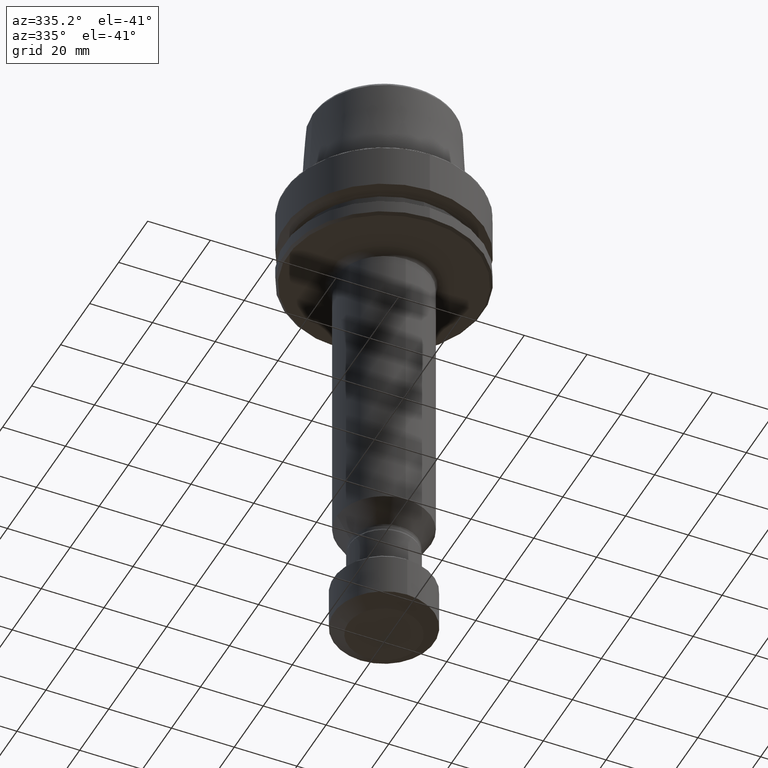
[diagram: clean part render]
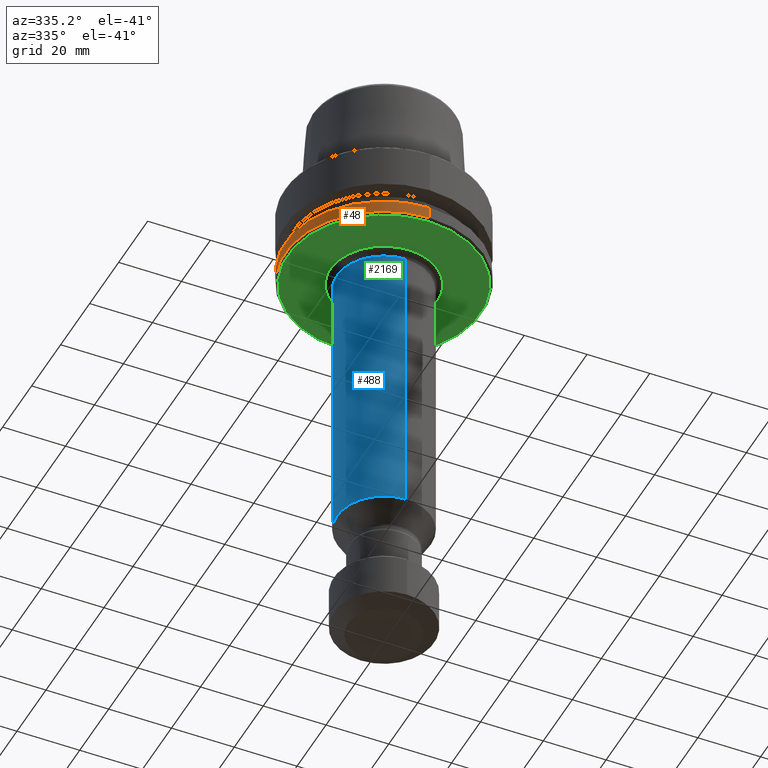
[diagram: same view with three faces highlighted in distinct colors, each labeled with its STEP entity id]
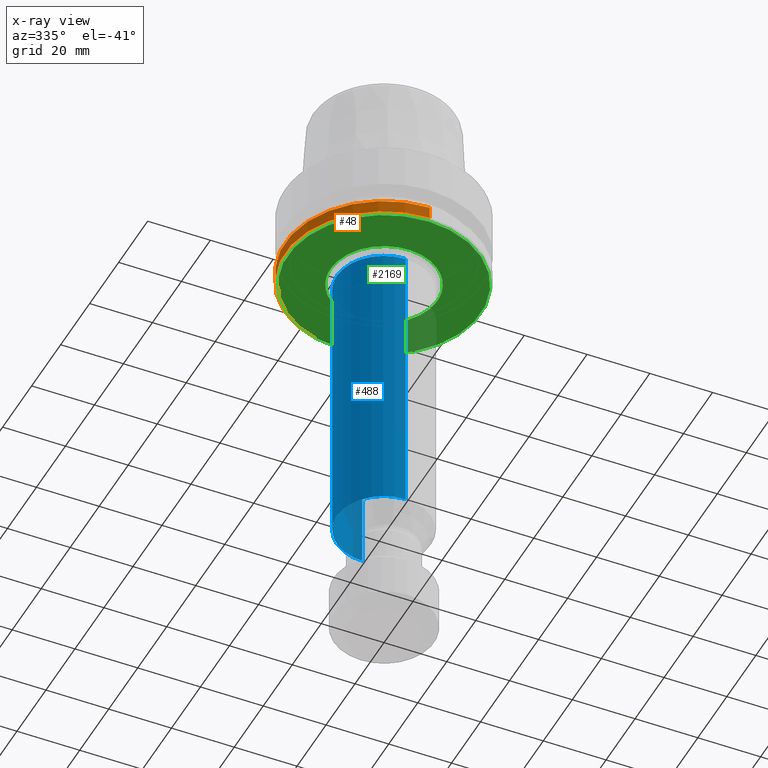
[diagram: x-ray of the same camera — body ghosted, the three highlighted faces saturated]
A machine part, auxiliary view with three faces highlighted in distinct colors.
The next image is the same camera in x-ray (body ghosted, the three faces saturated) — at least one of them is partly hidden behind the body in this view.
Their STEP definitions:

[orange] entity #48 — the highlighted cylindrical surface (partial cylindrical patch) has radius 31.5171 mm, axis along (-0, 0, -1).
#33 = CARTESIAN_POINT ( 'NONE',  ( 3.859731114586819800E-015, -31.51709633191913800, -26.00000000375680600 ) ) ;
#48 = ADVANCED_FACE ( 'NONE', ( #560 ), #2134, .T. ) ;
#65 = CARTESIAN_POINT ( 'NONE',  ( 0.0000000000000000000, 3.171708505008468500E-009, -21.33888289826489500 ) ) ;
#109 = AXIS2_PLACEMENT_3D ( 'NONE', #923, #687, #2064 ) ;
#133 = ORIENTED_EDGE ( 'NONE', *, *, #1141, .T. ) ;
#164 = VERTEX_POINT ( 'NONE', #244 ) ;
#179 = AXIS2_PLACEMENT_3D ( 'NONE', #65, #1617, #289 ) ;
#208 = VECTOR ( 'NONE', #273, 1000.000000000000000 ) ;
#244 = CARTESIAN_POINT ( 'NONE',  ( 3.859731114572656600E-015, -31.51709633178088100, -25.21952045006070600 ) ) ;
#273 = DIRECTION ( 'NONE',  ( -0.0000000000000000000, 1.191989932012234400E-010, -1.000000000000000000 ) ) ;
#289 = DIRECTION ( 'NONE',  ( 0.0000000000000000000, 1.000000000000000000, 1.191990316988540100E-010 ) ) ;
#328 = DIRECTION ( 'NONE',  ( 0.0000000000000000000, 1.000000000000000000, 1.191990316997287000E-010 ) ) ;
#480 = CARTESIAN_POINT ( 'NONE',  ( 0.0000000000000000000, 31.51709633937375800, -25.99999999624319000 ) ) ;
#516 = CARTESIAN_POINT ( 'NONE',  ( 0.0000000000000000000, 31.51709633904943400, -21.33888289450808900 ) ) ;
#560 = FACE_OUTER_BOUND ( 'NONE', #567, .T. ) ;
#567 = EDGE_LOOP ( 'NONE', ( #2666, #693, #133, #997 ) ) ;
#687 = DIRECTION ( 'NONE',  ( -0.0000000000000000000, 1.191989932012234400E-010, -1.000000000000000000 ) ) ;
#693 = ORIENTED_EDGE ( 'NONE', *, *, #927, .T. ) ;
#923 = CARTESIAN_POINT ( 'NONE',  ( 0.0000000000000000000, 3.634276593713582200E-009, -25.21952044630390000 ) ) ;
#927 = EDGE_CURVE ( 'NONE', #1652, #1264, #1047, .T. ) ;
#997 = ORIENTED_EDGE ( 'NONE', *, *, #1541, .F. ) ;
#1047 = CIRCLE ( 'NONE', #179, 31.51709633587772400 ) ;
#1141 = EDGE_CURVE ( 'NONE', #1264, #2249, #2524, .T. ) ;
#1264 = VERTEX_POINT ( 'NONE', #516 ) ;
#1406 = EDGE_CURVE ( 'NONE', #1652, #164, #1942, .T. ) ;
#1432 = CARTESIAN_POINT ( 'NONE',  ( 0.0000000000000000000, 31.51709633904942700, -25.21952044254709000 ) ) ;
#1504 = VECTOR ( 'NONE', #2164, 1000.000000000000000 ) ;
#1541 = EDGE_CURVE ( 'NONE', #164, #2249, #2690, .T. ) ;
#1565 = CARTESIAN_POINT ( 'NONE',  ( 3.859731114615143900E-015, -31.51709633270602500, -21.33888290202170500 ) ) ;
#1617 = DIRECTION ( 'NONE',  ( -0.0000000000000000000, 1.191989932012234400E-010, -1.000000000000000000 ) ) ;
#1652 = VERTEX_POINT ( 'NONE', #1565 ) ;
#1726 = CARTESIAN_POINT ( 'NONE',  ( 0.0000000000000000000, 3.727308970728297600E-009, -26.00000000000000000 ) ) ;
#1837 = DIRECTION ( 'NONE',  ( -0.0000000000000000000, 1.191989932012234400E-010, -1.000000000000000000 ) ) ;
#1941 = AXIS2_PLACEMENT_3D ( 'NONE', #1726, #1837, #328 ) ;
#1942 = LINE ( 'NONE', #33, #208 ) ;
#2064 = DIRECTION ( 'NONE',  ( 0.0000000000000000000, 1.000000000000000000, 1.191990317006034700E-010 ) ) ;
#2134 = CYLINDRICAL_SURFACE ( 'NONE', #1941, 31.51709633564645000 ) ;
#2164 = DIRECTION ( 'NONE',  ( -0.0000000000000000000, 1.191989932012234400E-010, -1.000000000000000000 ) ) ;
#2249 = VERTEX_POINT ( 'NONE', #1432 ) ;
#2524 = LINE ( 'NONE', #480, #1504 ) ;
#2666 = ORIENTED_EDGE ( 'NONE', *, *, #1406, .F. ) ;
#2690 = CIRCLE ( 'NONE', #109, 31.51709633541515400 ) ;

[blue] entity #488 — the highlighted cylindrical surface (partial cylindrical patch) has radius 15 mm, axis along (0, -0, 1).
#47 = CARTESIAN_POINT ( 'NONE',  ( -15.00000000000004800, 1.836970198721035500E-015, -120.0399999999999200 ) ) ;
#71 = FACE_OUTER_BOUND ( 'NONE', #1310, .T. ) ;
#75 = CARTESIAN_POINT ( 'NONE',  ( 0.0000000000000000000, 0.0000000000000000000, -120.0399999999999200 ) ) ;
#102 = CARTESIAN_POINT ( 'NONE',  ( 0.0000000000000000000, 0.0000000000000000000, -120.0400000000000100 ) ) ;
#159 = AXIS2_PLACEMENT_3D ( 'NONE', #1609, #956, #349 ) ;
#245 = VECTOR ( 'NONE', #866, 1000.000000000000000 ) ;
#298 = DIRECTION ( 'NONE',  ( 1.000000000000000000, 0.0000000000000000000, -5.551115123125782700E-015 ) ) ;
#349 = DIRECTION ( 'NONE',  ( 1.000000000000000000, 0.0000000000000000000, -5.551115123125782700E-015 ) ) ;
#350 = CARTESIAN_POINT ( 'NONE',  ( 0.0000000000000000000, -15.00000000000004300, -27.99999999999999600 ) ) ;
#389 = ORIENTED_EDGE ( 'NONE', *, *, #1256, .T. ) ;
#422 = CARTESIAN_POINT ( 'NONE',  ( -15.00000000000000000, -3.691861713275960800E-009, -27.99999999999999600 ) ) ;
#435 = AXIS2_PLACEMENT_3D ( 'NONE', #75, #1627, #298 ) ;
#488 = ADVANCED_FACE ( 'NONE', ( #71 ), #2208, .T. ) ;
#582 = DIRECTION ( 'NONE',  ( 0.0000000000000000000, -1.000000000000000000, -9.251858538542971800E-016 ) ) ;
#585 = AXIS2_PLACEMENT_3D ( 'NONE', #102, #2658, #582 ) ;
#645 = VERTEX_POINT ( 'NONE', #2436 ) ;
#706 = VECTOR ( 'NONE', #2204, 1000.000000000000000 ) ;
#765 = ORIENTED_EDGE ( 'NONE', *, *, #2238, .F. ) ;
#783 = EDGE_CURVE ( 'NONE', #875, #1807, #854, .T. ) ;
#785 = CARTESIAN_POINT ( 'NONE',  ( 0.0000000000000000000, 0.0000000000000000000, -27.99999999999999600 ) ) ;
#794 = AXIS2_PLACEMENT_3D ( 'NONE', #853, #1680, #2548 ) ;
#841 = CARTESIAN_POINT ( 'NONE',  ( 1.836970198721029600E-015, 15.00000000000000000, -120.0399999999999900 ) ) ;
#853 = CARTESIAN_POINT ( 'NONE',  ( 0.0000000000000000000, 0.0000000000000000000, -27.99999999999999600 ) ) ;
#854 = LINE ( 'NONE', #841, #245 ) ;
#866 = DIRECTION ( 'NONE',  ( 0.0000000000000000000, -4.625929269271486900E-016, 1.000000000000000000 ) ) ;
#872 = DIRECTION ( 'NONE',  ( 0.0000000000000000000, 0.0000000000000000000, 1.000000000000000000 ) ) ;
#875 = VERTEX_POINT ( 'NONE', #1584 ) ;
#876 = ORIENTED_EDGE ( 'NONE', *, *, #783, .F. ) ;
#885 = DIRECTION ( 'NONE',  ( 1.000000000000000000, 0.0000000000000000000, -2.312964634635743000E-016 ) ) ;
#908 = ORIENTED_EDGE ( 'NONE', *, *, #2365, .F. ) ;
#947 = EDGE_CURVE ( 'NONE', #1898, #645, #1540, .T. ) ;
#956 = DIRECTION ( 'NONE',  ( 0.0000000000000000000, 0.0000000000000000000, 1.000000000000000000 ) ) ;
#966 = AXIS2_PLACEMENT_3D ( 'NONE', #785, #872, #885 ) ;
#1196 = CIRCLE ( 'NONE', #966, 15.00000000000000000 ) ;
#1256 = EDGE_CURVE ( 'NONE', #645, #2397, #1324, .T. ) ;
#1310 = EDGE_LOOP ( 'NONE', ( #876, #1730, #1986, #389, #908, #765 ) ) ;
#1324 = LINE ( 'NONE', #2278, #706 ) ;
#1379 = EDGE_CURVE ( 'NONE', #875, #1898, #2011, .T. ) ;
#1540 = CIRCLE ( 'NONE', #435, 15.00000000000000000 ) ;
#1564 = CARTESIAN_POINT ( 'NONE',  ( 1.836970198721029600E-015, 14.99999999999995600, -27.99999999999999600 ) ) ;
#1584 = CARTESIAN_POINT ( 'NONE',  ( 1.836970198721032000E-015, 15.00000000000000000, -120.0399999999999200 ) ) ;
#1609 = CARTESIAN_POINT ( 'NONE',  ( 0.0000000000000000000, 0.0000000000000000000, -120.0399999999999200 ) ) ;
#1627 = DIRECTION ( 'NONE',  ( 0.0000000000000000000, 0.0000000000000000000, 1.000000000000000000 ) ) ;
#1680 = DIRECTION ( 'NONE',  ( 0.0000000000000000000, 0.0000000000000000000, 1.000000000000000000 ) ) ;
#1730 = ORIENTED_EDGE ( 'NONE', *, *, #1379, .T. ) ;
#1800 = CIRCLE ( 'NONE', #794, 15.00000000000000000 ) ;
#1807 = VERTEX_POINT ( 'NONE', #1564 ) ;
#1898 = VERTEX_POINT ( 'NONE', #47 ) ;
#1986 = ORIENTED_EDGE ( 'NONE', *, *, #947, .T. ) ;
#2011 = CIRCLE ( 'NONE', #159, 15.00000000000000000 ) ;
#2175 = VERTEX_POINT ( 'NONE', #422 ) ;
#2204 = DIRECTION ( 'NONE',  ( 0.0000000000000000000, -4.625929269271486900E-016, 1.000000000000000000 ) ) ;
#2208 = CYLINDRICAL_SURFACE ( 'NONE', #585, 15.00000000000000000 ) ;
#2238 = EDGE_CURVE ( 'NONE', #1807, #2175, #1800, .T. ) ;
#2278 = CARTESIAN_POINT ( 'NONE',  ( 0.0000000000000000000, -15.00000000000000000, -120.0400000000000200 ) ) ;
#2365 = EDGE_CURVE ( 'NONE', #2175, #2397, #1196, .T. ) ;
#2397 = VERTEX_POINT ( 'NONE', #350 ) ;
#2436 = CARTESIAN_POINT ( 'NONE',  ( 0.0000000000000000000, -15.00000000000000000, -120.0399999999999200 ) ) ;
#2548 = DIRECTION ( 'NONE',  ( 1.000000000000000000, 0.0000000000000000000, -2.312964634635743000E-016 ) ) ;
#2658 = DIRECTION ( 'NONE',  ( 0.0000000000000000000, -4.625929269271486900E-016, 1.000000000000000000 ) ) ;

[green] entity #2169 — the highlighted planar face has unit normal (0, 0, 1).
#23 = CARTESIAN_POINT ( 'NONE',  ( -9.647156264525051500, 13.99763926153691100, -26.00000000000001100 ) ) ;
#38 = CARTESIAN_POINT ( 'NONE',  ( 5.834791823274754200, -15.96755372588002900, -26.00000000000000000 ) ) ;
#42 = CARTESIAN_POINT ( 'NONE',  ( -11.40718896748278700, 12.60828393399529700, -26.00000000000000400 ) ) ;
#49 = CARTESIAN_POINT ( 'NONE',  ( -16.85576474268924600, -2.209818300170409300, -26.00000000000000000 ) ) ;
#53 = CARTESIAN_POINT ( 'NONE',  ( -16.86035588276091300, -2.174700083002717700, -26.00000000000000000 ) ) ;
#66 = CARTESIAN_POINT ( 'NONE',  ( -9.940187602023494100, 13.79468661339041600, -26.00000000000000700 ) ) ;
#70 = CARTESIAN_POINT ( 'NONE',  ( 10.96779659965198800, -12.98916458341760100, -26.00000000000000400 ) ) ;
#78 = CARTESIAN_POINT ( 'NONE',  ( 13.28972600789002100, -10.60284131155885700, -26.00000000000000700 ) ) ;
#83 = CARTESIAN_POINT ( 'NONE',  ( 15.26609139954376300, -7.479753492256599600, -26.00000000000001400 ) ) ;
#92 = CARTESIAN_POINT ( 'NONE',  ( -10.32283768817465500, 13.51352612423026800, -26.00000000000000000 ) ) ;
#96 = CARTESIAN_POINT ( 'NONE',  ( 16.73638598865893800, -2.995746654456582700, -26.00000000000000700 ) ) ;
#104 = CARTESIAN_POINT ( 'NONE',  ( -10.75516065195249700, 13.16703087652168800, -26.00000000000000700 ) ) ;
#121 = CARTESIAN_POINT ( 'NONE',  ( -10.96779659965844500, 12.98916458341195900, -26.00000000000001100 ) ) ;
#154 = CARTESIAN_POINT ( 'NONE',  ( -11.05817081992179900, 12.91194645723877200, -26.00000000000000400 ) ) ;
#183 = CARTESIAN_POINT ( 'NONE',  ( 3.843225236679011400, -16.56011569873480500, -26.00000000000000400 ) ) ;
#185 = CARTESIAN_POINT ( 'NONE',  ( -11.11825241751721700, 12.86024776982542200, -26.00000000000000700 ) ) ;
#188 = CARTESIAN_POINT ( 'NONE',  ( -11.14944384421238300, 12.83321108289902000, -26.00000000000000400 ) ) ;
#191 = CARTESIAN_POINT ( 'NONE',  ( -8.072421543958272500, -14.96120437804487000, -26.00000000000000000 ) ) ;
#202 = CARTESIAN_POINT ( 'NONE',  ( -12.58346260199631000, -11.43056078559723200, -26.00000000000000700 ) ) ;
#209 = CARTESIAN_POINT ( 'NONE',  ( -15.04449788419776200, -7.934399767635366800, -26.00000000000001100 ) ) ;
#215 = CARTESIAN_POINT ( 'NONE',  ( -16.92634586939122700, -1.600533258015854200, -26.00000000000000400 ) ) ;
#228 = VERTEX_POINT ( 'NONE', #1157 ) ;
#247 = CARTESIAN_POINT ( 'NONE',  ( -16.33489600306393900, -4.708642505619356400, -26.00000000000000400 ) ) ;
#250 = CARTESIAN_POINT ( 'NONE',  ( -11.74241451338749100, 12.29951821889429600, -26.00000000000000700 ) ) ;
#254 = ORIENTED_EDGE ( 'NONE', *, *, #930, .T. ) ;
#255 = CARTESIAN_POINT ( 'NONE',  ( -11.29230975318160200, -12.70767939539272200, -26.00000000000000700 ) ) ;
#267 = CARTESIAN_POINT ( 'NONE',  ( -15.46168851143653800, -7.068391768522939600, -26.00000000000000700 ) ) ;
#286 = CARTESIAN_POINT ( 'NONE',  ( 8.716956867296749700, -14.60150997321109800, -26.00000000000001100 ) ) ;
#293 = CARTESIAN_POINT ( 'NONE',  ( 11.11825241751517300, -12.86024776982721500, -26.00000000000000000 ) ) ;
#295 = CARTESIAN_POINT ( 'NONE',  ( -12.11875040131196200, 11.92378156395837300, -26.00000000000000700 ) ) ;
#303 = CARTESIAN_POINT ( 'NONE',  ( 13.52336041526566000, -10.30150266362391200, -26.00000000000000000 ) ) ;
#309 = CARTESIAN_POINT ( 'NONE',  ( -12.46060636964964800, 11.56436640063805200, -26.00000000000000400 ) ) ;
#312 = CARTESIAN_POINT ( 'NONE',  ( 15.49216912478112600, -7.016095908822215700, -26.00000000000001100 ) ) ;
#315 = CARTESIAN_POINT ( 'NONE',  ( -12.38149936781433000, 11.64902806564135700, -26.00000000000000000 ) ) ;
#318 = CARTESIAN_POINT ( 'NONE',  ( -12.43350442533953000, 11.59350497358883400, -26.00000000000000700 ) ) ;
#321 = CARTESIAN_POINT ( 'NONE',  ( 16.82384480968806500, -2.441974664253411500, -26.00000000000000400 ) ) ;
#322 = AXIS2_PLACEMENT_3D ( 'NONE', #2027, #744, #2203 ) ;
#367 = CARTESIAN_POINT ( 'NONE',  ( -12.68236215214468700, 11.32441305218912400, -26.00000000000001100 ) ) ;
#371 = CARTESIAN_POINT ( 'NONE',  ( -15.17620408239110900, 7.661003371127924800, -26.00000000000000700 ) ) ;
#378 = CARTESIAN_POINT ( 'NONE',  ( -13.44610155534271600, 10.40247710365459400, -26.00000000000001100 ) ) ;
#382 = CARTESIAN_POINT ( 'NONE',  ( -13.28972600791165500, 10.60284131153130400, -26.00000000000001100 ) ) ;
#400 = CARTESIAN_POINT ( 'NONE',  ( 6.706845463135679500, 15.62269563764839700, -26.00000000000001800 ) ) ;
#414 = CARTESIAN_POINT ( 'NONE',  ( -13.52336041527243200, 10.30150266361530100, -26.00000000000000000 ) ) ;
#416 = CARTESIAN_POINT ( 'NONE',  ( -8.252651186404257500, -14.86289130710688000, -26.00000000000000700 ) ) ;
#420 = CARTESIAN_POINT ( 'NONE',  ( -13.55627230228821400, 10.25805811729110900, -26.00000000000000400 ) ) ;
#428 = CARTESIAN_POINT ( 'NONE',  ( -16.37154339561440300, -4.580126690241742800, -26.00000000000001100 ) ) ;
#432 = CARTESIAN_POINT ( 'NONE',  ( -9.612090290506479600, 14.02174557289354300, -26.00000000000001100 ) ) ;
#436 = CARTESIAN_POINT ( 'NONE',  ( -15.29409227492536200, -7.422327391320598300, -26.00000000000000000 ) ) ;
#442 = CARTESIAN_POINT ( 'NONE',  ( -13.57816932630893300, 10.22905735611779200, -26.00000000000000700 ) ) ;
#453 = CARTESIAN_POINT ( 'NONE',  ( -13.58988373676121400, 10.21348749009063400, -26.00000000000000400 ) ) ;
#464 = CARTESIAN_POINT ( 'NONE',  ( -14.37662306357473900, 9.100880302218154600, -26.00000000000000700 ) ) ;
#467 = CARTESIAN_POINT ( 'NONE',  ( 0.3539836910112552100, -17.00001145159534800, -26.00000000000000400 ) ) ;
#469 = CARTESIAN_POINT ( 'NONE',  ( -13.92372040202458000, 9.768400300886966600, -26.00000000000000000 ) ) ;
#486 = CARTESIAN_POINT ( 'NONE',  ( -7.701651649558276500, -15.15913078814429000, -26.00000000000000700 ) ) ;
#494 = CARTESIAN_POINT ( 'NONE',  ( -15.37233848124005000, -7.259313674650067900, -26.00000000000000700 ) ) ;
#502 = CARTESIAN_POINT ( 'NONE',  ( -9.713453418957646700, -13.95171910311291400, -26.00000000000000700 ) ) ;
#510 = ORIENTED_EDGE ( 'NONE', *, *, #607, .T. ) ;
#513 = CARTESIAN_POINT ( 'NONE',  ( -14.84782310272869100, 8.286896181649396500, -26.00000000000000700 ) ) ;
#519 = CARTESIAN_POINT ( 'NONE',  ( 11.40718896746695600, -12.60828393400910800, -25.99999999999999600 ) ) ;
#530 = CARTESIAN_POINT ( 'NONE',  ( 13.57816932630689700, -10.22905735612038700, -25.99999999999999600 ) ) ;
#536 = CARTESIAN_POINT ( 'NONE',  ( 16.06691766936462400, -5.563972322452262800, -26.00000000000000700 ) ) ;
#547 = CARTESIAN_POINT ( 'NONE',  ( 16.84237997207998200, -2.309627413207572900, -26.00000000000000000 ) ) ;
#562 = CARTESIAN_POINT ( 'NONE',  ( -15.22884932485959700, 7.555404176033091400, -26.00000000000000400 ) ) ;
#572 = CARTESIAN_POINT ( 'NONE',  ( -15.25122009931264700, 7.510029484869273900, -26.00000000000000400 ) ) ;
#587 = CARTESIAN_POINT ( 'NONE',  ( -15.27429668038375800, 7.462980148546568800, -26.00000000000001100 ) ) ;
#591 = CARTESIAN_POINT ( 'NONE',  ( 0.0000000000000000000, 3.727308971165062200E-009, -26.00000000366415900 ) ) ;
#606 = CARTESIAN_POINT ( 'NONE',  ( -15.49216912477989200, 7.016095908826447800, -26.00000000000000700 ) ) ;
#607 = EDGE_CURVE ( 'NONE', #656, #2230, #1220, .T. ) ;
#616 = CARTESIAN_POINT ( 'NONE',  ( -15.26609139954375700, 7.479753492256499200, -26.00000000000000700 ) ) ;
#626 = CARTESIAN_POINT ( 'NONE',  ( 4.519852897653138700, -16.39179475803933200, -26.00000000000000400 ) ) ;
#644 = CARTESIAN_POINT ( 'NONE',  ( -9.409810366562720000, -14.16204788078237100, -26.00000000000001100 ) ) ;
#656 = VERTEX_POINT ( 'NONE', #1682 ) ;
#666 = CARTESIAN_POINT ( 'NONE',  ( -15.63411984570430300, -6.684155819602242600, -26.00000000000000000 ) ) ;
#678 = CARTESIAN_POINT ( 'NONE',  ( -16.42136281507075800, -4.399898238896944300, -26.00000000000000700 ) ) ;
#697 = CARTESIAN_POINT ( 'NONE',  ( 1.412797614006375400, -16.94213636882154400, -26.00000000000000000 ) ) ;
#701 = CARTESIAN_POINT ( 'NONE',  ( -15.78050945205662700, 6.354909413765298600, -26.00000000000000700 ) ) ;
#705 = CARTESIAN_POINT ( 'NONE',  ( -12.82553248566622800, -11.15987411350598500, -26.00000000000000000 ) ) ;
#714 = CARTESIAN_POINT ( 'NONE',  ( -16.99999999918119200, -0.3776924275553627500, -26.00000000000000700 ) ) ;
#720 = CARTESIAN_POINT ( 'NONE',  ( 7.963786252837478800, -15.01931258121101600, -26.00000000000000700 ) ) ;
#731 = CARTESIAN_POINT ( 'NONE',  ( -8.997417252164822800, -14.43038094489272000, -26.00000000000000400 ) ) ;
#737 = CARTESIAN_POINT ( 'NONE',  ( -16.19762457022040200, 5.163615565036729500, -26.00000000000001400 ) ) ;
#740 = CARTESIAN_POINT ( 'NONE',  ( 9.442227348032430400, -14.13704851326248700, -26.00000000000000400 ) ) ;
#742 = CARTESIAN_POINT ( 'NONE',  ( -12.96954360276308000, 10.99723103847711600, -25.99999999999999600 ) ) ;
#744 = DIRECTION ( 'NONE',  ( -0.0000000000000000000, 1.191989932012234400E-010, -1.000000000000000000 ) ) ;
#749 = CARTESIAN_POINT ( 'NONE',  ( 12.11875040129119300, -11.92378156397649200, -26.00000000000000000 ) ) ;
#751 = CARTESIAN_POINT ( 'NONE',  ( -16.06691766936300100, 5.563972322457834400, -26.00000000000000700 ) ) ;
#757 = VERTEX_POINT ( 'NONE', #1712 ) ;
#760 = CARTESIAN_POINT ( 'NONE',  ( 13.92372040202472400, -9.768400300888579600, -26.00000000000000400 ) ) ;
#768 = CARTESIAN_POINT ( 'NONE',  ( 16.25985371870066100, -4.962215133382608600, -26.00000000000000700 ) ) ;
#782 = CARTESIAN_POINT ( 'NONE',  ( 16.84799041216786400, -2.268335583504914200, -26.00000000000000400 ) ) ;
#810 = CARTESIAN_POINT ( 'NONE',  ( -16.25985371870015700, 4.962215133384347600, -26.00000000000000400 ) ) ;
#815 = AXIS2_PLACEMENT_3D ( 'NONE', #591, #2091, #826 ) ;
#819 = CARTESIAN_POINT ( 'NONE',  ( 16.99999999918119900, 0.3776924275719731900, -26.00000000000000000 ) ) ;
#826 = DIRECTION ( 'NONE',  ( 0.0000000000000000000, 1.000000000000000000, 1.191989462966579200E-010 ) ) ;
#836 = CARTESIAN_POINT ( 'NONE',  ( -16.30301991502808400, 4.817855767602949000, -25.99999999999999300 ) ) ;
#842 = CARTESIAN_POINT ( 'NONE',  ( 16.99999999938484100, 3.727308970728297600E-009, -26.00000000000000000 ) ) ;
#851 = CARTESIAN_POINT ( 'NONE',  ( -16.29018721745279300, 4.861209404322699400, -26.00000000000000700 ) ) ;
#856 = CARTESIAN_POINT ( 'NONE',  ( -16.31625896462853500, 4.772824967047387900, -26.00000000000000400 ) ) ;
#863 = CARTESIAN_POINT ( 'NONE',  ( 16.98119468944758000, 0.9430413942550678300, -26.00000000000000400 ) ) ;
#867 = CARTESIAN_POINT ( 'NONE',  ( 16.92634586939123100, 1.600533258037655200, -26.00000000000001100 ) ) ;
#871 = CARTESIAN_POINT ( 'NONE',  ( -5.347591686379922200, -16.14352872737217500, -26.00000000000000400 ) ) ;
#879 = CARTESIAN_POINT ( 'NONE',  ( 16.89069413635457600, 1.928758707258705800, -25.99999999999999600 ) ) ;
#884 = CARTESIAN_POINT ( 'NONE',  ( -9.809656579700993400, -13.88424100516168400, -26.00000000000000400 ) ) ;
#888 = CARTESIAN_POINT ( 'NONE',  ( 16.87081143908416800, 2.092741311201646000, -26.00000000000000700 ) ) ;
#893 = CARTESIAN_POINT ( 'NONE',  ( -16.31153785267413900, 4.788938794873819100, -26.00000000000001100 ) ) ;
#897 = CARTESIAN_POINT ( 'NONE',  ( -13.61089059393459500, -10.18547828135432600, -26.00000000000000400 ) ) ;
#903 = CARTESIAN_POINT ( 'NONE',  ( 16.86035588276091700, 2.174700083006250400, -26.00000000000000000 ) ) ;
#918 = CARTESIAN_POINT ( 'NONE',  ( -16.43971310594719500, 4.349601046917640300, -26.00000000000000000 ) ) ;
#925 = CARTESIAN_POINT ( 'NONE',  ( -2.465069421420353900, -16.82124625225683400, -26.00000000000000400 ) ) ;
#929 = CARTESIAN_POINT ( 'NONE',  ( 16.85576474268923900, 2.209818300172448100, -26.00000000000000000 ) ) ;
#930 = EDGE_CURVE ( 'NONE', #757, #228, #2071, .T. ) ;
#933 = CARTESIAN_POINT ( 'NONE',  ( 16.85267949656107000, 2.233228895894351100, -26.00000000000000700 ) ) ;
#936 = CARTESIAN_POINT ( 'NONE',  ( 1.942477690900757300, -16.88956572208821400, -26.00000000000000700 ) ) ;
#938 = CARTESIAN_POINT ( 'NONE',  ( -5.590991011447757200, 16.05595171354687500, -26.00000000000000700 ) ) ;
#942 = CARTESIAN_POINT ( 'NONE',  ( 16.85133050372439100, 2.243395881769888200, -26.00000000000000000 ) ) ;
#945 = CARTESIAN_POINT ( 'NONE',  ( -11.96070595910099000, -12.08734611341330400, -26.00000000000000000 ) ) ;
#950 = CARTESIAN_POINT ( 'NONE',  ( 16.79282208412595900, 2.680358328449334000, -26.00000000000000400 ) ) ;
#970 = CARTESIAN_POINT ( 'NONE',  ( -15.28828640665194200, -7.434283152958784900, -26.00000000000000000 ) ) ;
#972 = CARTESIAN_POINT ( 'NONE',  ( 16.68407581597388800, 3.311069552728886900, -25.99999999999999600 ) ) ;
#980 = CARTESIAN_POINT ( 'NONE',  ( -2.811825642785116500, -16.76678586512079500, -26.00000000000000000 ) ) ;
#981 = CARTESIAN_POINT ( 'NONE',  ( -16.59569262625943200, 3.728881478310603000, -26.00000000000001100 ) ) ;
#985 = CARTESIAN_POINT ( 'NONE',  ( -16.73638598866200100, 2.995746654446077800, -26.00000000000000700 ) ) ;
#987 = CARTESIAN_POINT ( 'NONE',  ( 9.612090290504866600, -14.02174557289427700, -26.00000000000000000 ) ) ;
#991 = CARTESIAN_POINT ( 'NONE',  ( 16.51582972314454500, 4.038375910784454300, -26.00000000000000000 ) ) ;
#995 = CARTESIAN_POINT ( 'NONE',  ( -16.79641198370620000, 2.626938744058072500, -26.00000000000000700 ) ) ;
#999 = CARTESIAN_POINT ( 'NONE',  ( 12.38149936780704300, -11.64902806564772500, -26.00000000000000400 ) ) ;
#1009 = CARTESIAN_POINT ( 'NONE',  ( 14.84782310272889200, -8.286896181651494300, -26.00000000000000000 ) ) ;
#1020 = CARTESIAN_POINT ( 'NONE',  ( 16.30301991502824100, -4.817855767602432900, -26.00000000000000400 ) ) ;
#1021 = CARTESIAN_POINT ( 'NONE',  ( 16.42136281506691700, 4.399898238911236900, -26.00000000000000700 ) ) ;
#1025 = CARTESIAN_POINT ( 'NONE',  ( -16.82384480968902800, 2.441974664250130500, -26.00000000000000700 ) ) ;
#1029 = CARTESIAN_POINT ( 'NONE',  ( 16.99999999918119200, -0.7557261884796181400, -26.00000000000000000 ) ) ;
#1036 = CARTESIAN_POINT ( 'NONE',  ( 16.37154339561233500, 4.580126690249398900, -26.00000000000000400 ) ) ;
#1045 = CARTESIAN_POINT ( 'NONE',  ( 6.940226566734155600, -15.52527591236604800, -26.00000000000001100 ) ) ;
#1057 = CARTESIAN_POINT ( 'NONE',  ( -16.83691617979560800, 2.349352593192678200, -26.00000000000000400 ) ) ;
#1059 = CARTESIAN_POINT ( 'NONE',  ( -17.00000000079964500, 3.727308392487138600E-009, -26.00000000000000700 ) ) ;
#1063 = EDGE_CURVE ( 'NONE', #228, #757, #1210, .T. ) ;
#1071 = CARTESIAN_POINT ( 'NONE',  ( -16.84799041216786000, 2.268335583505176600, -26.00000000000000000 ) ) ;
#1085 = CARTESIAN_POINT ( 'NONE',  ( 16.34598719453112300, 4.670107737737172500, -26.00000000000000400 ) ) ;
#1088 = CARTESIAN_POINT ( 'NONE',  ( -16.84599178394218200, 2.283137291732381800, -26.00000000000000400 ) ) ;
#1092 = CARTESIAN_POINT ( 'NONE',  ( -16.99999999918118500, 0.7557261884630278600, -25.99999999999999600 ) ) ;
#1095 = CARTESIAN_POINT ( 'NONE',  ( 6.473660463889022900, -15.72279917331314000, -26.00000000000000000 ) ) ;
#1099 = CARTESIAN_POINT ( 'NONE',  ( -16.94985250655823000, 1.507938577807351500, -26.00000000000000400 ) ) ;
#1105 = CARTESIAN_POINT ( 'NONE',  ( -6.239085491697580600, -15.81395577495981900, -26.00000000000000700 ) ) ;
#1115 = CARTESIAN_POINT ( 'NONE',  ( -10.57303944956091100, -13.31867976884930500, -26.00000000000000000 ) ) ;
#1125 = CARTESIAN_POINT ( 'NONE',  ( -16.68407581598267700, -3.311069552696198800, -26.00000000000000400 ) ) ;
#1145 = CARTESIAN_POINT ( 'NONE',  ( 16.33489600306332100, 4.708642505621647000, -26.00000000000000400 ) ) ;
#1151 = CARTESIAN_POINT ( 'NONE',  ( 16.32747109011555900, 4.734326009059806500, -25.99999999999999600 ) ) ;
#1154 = CARTESIAN_POINT ( 'NONE',  ( -3.330378292184442000, -16.67709292436704500, -26.00000000000001400 ) ) ;
#1157 = CARTESIAN_POINT ( 'NONE',  ( 3.812139285837914400E-015, 30.73986279305038800, -26.00000000000000000 ) ) ;
#1163 = CARTESIAN_POINT ( 'NONE',  ( 2.465239170421802900, -16.82398139385317400, -26.00000000000000400 ) ) ;
#1173 = CARTESIAN_POINT ( 'NONE',  ( -12.51104193519603000, -11.50978870937436800, -26.00000000000000700 ) ) ;
#1177 = CARTESIAN_POINT ( 'NONE',  ( 16.32421794116105200, 4.745536864055036800, -26.00000000000000400 ) ) ;
#1178 = EDGE_CURVE ( 'NONE', #2230, #656, #2342, .T. ) ;
#1185 = CARTESIAN_POINT ( 'NONE',  ( -13.87862627674489200, -9.819191956746934100, -26.00000000000000400 ) ) ;
#1188 = CARTESIAN_POINT ( 'NONE',  ( 16.18502585690640700, 5.222820342672882500, -26.00000000000000700 ) ) ;
#1194 = CARTESIAN_POINT ( 'NONE',  ( -16.32421794116093800, -4.745536864055377900, -26.00000000000000700 ) ) ;
#1195 = CARTESIAN_POINT ( 'NONE',  ( 15.95390760973257300, 5.906115375114203500, -26.00000000000000400 ) ) ;
#1199 = CARTESIAN_POINT ( 'NONE',  ( 15.63411984569950900, 6.684155819616573300, -26.00000000000001100 ) ) ;
#1202 = CARTESIAN_POINT ( 'NONE',  ( 15.46168851143372800, 7.068391768531292000, -26.00000000000000400 ) ) ;
#1207 = CARTESIAN_POINT ( 'NONE',  ( 9.940187602015065200, -13.79468661339777000, -26.00000000000000700 ) ) ;
#1210 = CIRCLE ( 'NONE', #815, 30.73986278932308000 ) ;
#1217 = CARTESIAN_POINT ( 'NONE',  ( 12.46060636965171400, -11.56436640063542900, -26.00000000000000400 ) ) ;
#1220 = B_SPLINE_CURVE_WITH_KNOTS ( 'NONE', 3,
 ( #2313, #714, #2375, #215, #1538, #1563, #53, #49, #2348, #1429, #2016, #1125, #1808, #678, #428, #1600, #247, #1422, #1194, #2323, #2144, #666, #267, #494, #1951, #2186, #436, #970, #209, #2679, #1356, #1185, #2362, #2549, #2501, #1409, #897, #2137, #1939, #705, #1727, #202, #2670, #1173, #2542, #945, #1345, #2355, #255, #2493, #1588, #2179, #1115, #1997, #2305, #884, #2129, #502, #644, #731, #1932, #416, #1722, #191, #1531, #486, #1788, #2662, #1337, #2484, #1105, #2298, #871, #1612, #2119, #2562, #2557, #1384, #1154, #980, #925, #2191, #1569, #1767, #467, #1976, #697, #2166, #936, #1163, #1394, #1714, #183, #1519, #1326, #626, #2089, #2112, #38, #2476, #2290, #1095, #1045, #1403, #2369, #1798, #2007, #720, #1816, #286, #2024, #740, #2200, #987, #2381, #1207, #2567, #1434, #70, #1622, #293, #1826, #519, #2031, #749, #2207, #999, #2386, #1217, #2574, #1440, #78, #1632, #303, #1833, #530, #2034, #760, #2212, #1009, #2394, #1224, #2584, #1445, #83, #1638, #312, #1840, #536, #2045, #768, #2217, #1020, #2404, #1234, #2589, #1457, #96, #1644, #321, #1854, #547, #2050, #782, #2225, #1029, #2414 ),
 .UNSPECIFIED., .F., .F.,
 ( 4, 1, 1, 1, 1, 1, 2, 2, 1, 1, 1, 1, 1, 2, 2, 1, 1, 1, 1, 1, 2, 2, 1, 1, 1, 1, 1, 2, 2, 1, 1, 1, 2, 2, 1, 1, 1, 2, 2, 1, 1, 1, 2, 2, 1, 1, 1, 2, 2, 1, 1, 2, 2, 1, 1, 2, 2, 1, 2, 2, 2, 1, 2, 2, 1, 1, 2, 2, 1, 1, 2, 2, 1, 1, 1, 2, 2, 1, 1, 1, 2, 2, 1, 1, 1, 2, 2, 1, 1, 1, 2, 2, 1, 1, 1, 1, 2, 2, 1, 1, 1, 1, 1, 2, 2, 1, 1, 1, 1, 1, 2, 2, 1, 1, 1, 1, 1, 2, 2, 4 ),
 ( 0.0000000000000000000, 0.03125000000000196400, 0.04687500000000295600, 0.05468750000000342100, 0.05859375000000365700, 0.06054687500000375400, 0.06152343750000378900, 0.06250000000000381600, 0.09375000000000507900, 0.1093750000000057300, 0.1171875000000060400, 0.1210937500000061800, 0.1230468750000062500, 0.1240234375000062600, 0.1250000000000062500, 0.1562500000000054400, 0.1718750000000050000, 0.1796875000000048000, 0.1835937500000046900, 0.1855468750000046100, 0.1865234375000045800, 0.1875000000000045500, 0.2187500000000038300, 0.2343750000000035000, 0.2421875000000033000, 0.2460937500000032500, 0.2480468750000032200, 0.2490234375000031900, 0.2500000000000031600, 0.2656250000000027800, 0.2734375000000026100, 0.2773437500000025000, 0.2792968750000023900, 0.2812500000000022800, 0.2968750000000021100, 0.3046875000000020000, 0.3085937500000019400, 0.3105468750000020000, 0.3125000000000020000, 0.3281250000000022800, 0.3359375000000025000, 0.3398437500000025500, 0.3417968750000025500, 0.3437500000000025500, 0.3593750000000030000, 0.3671875000000031600, 0.3710937500000032800, 0.3730468750000032800, 0.3750000000000032800, 0.3906250000000031100, 0.3984375000000030000, 0.4023437500000028900, 0.4062500000000028300, 0.4218750000000023900, 0.4296875000000021100, 0.4335937500000020500, 0.4375000000000019400, 0.4531250000000016100, 0.4609375000000014400, 0.4687500000000012800, 0.5000000000000005600, 0.5156250000000003300, 0.5234375000000001100, 0.5312500000000000000, 0.5468749999999996700, 0.5546874999999994400, 0.5585937499999993300, 0.5624999999999992200, 0.5781249999999990000, 0.5859374999999988900, 0.5898437499999987800, 0.5937499999999986700, 0.6093749999999981100, 0.6171874999999977800, 0.6210937499999977800, 0.6230468749999976700, 0.6249999999999975600, 0.6406249999999975600, 0.6484374999999974500, 0.6523437499999974500, 0.6542968749999974500, 0.6562499999999974500, 0.6718749999999977800, 0.6796874999999980000, 0.6835937499999981100, 0.6855468749999981100, 0.6874999999999981100, 0.7031249999999984500, 0.7109374999999985600, 0.7148437499999987800, 0.7167968749999987800, 0.7187499999999987800, 0.7343749999999992200, 0.7421874999999994400, 0.7460937499999995600, 0.7480468749999996700, 0.7490234374999997800, 0.7499999999999997800, 0.7812500000000014400, 0.7968750000000022200, 0.8046875000000025500, 0.8085937500000028900, 0.8105468750000030000, 0.8115234375000030000, 0.8125000000000031100, 0.8437500000000050000, 0.8593750000000057700, 0.8671875000000063300, 0.8710937500000065500, 0.8730468750000066600, 0.8740234375000066600, 0.8750000000000065500, 0.9062500000000050000, 0.9218750000000043300, 0.9296875000000038900, 0.9335937500000036600, 0.9355468750000036600, 0.9365234375000035500, 0.9375000000000035500, 1.000000000000000000 ),
 .UNSPECIFIED. ) ;
#1224 = CARTESIAN_POINT ( 'NONE',  ( 15.17620408239117300, -7.661003371128572300, -26.00000000000001100 ) ) ;
#1234 = CARTESIAN_POINT ( 'NONE',  ( 16.31625896462860200, -4.772824967047137400, -26.00000000000000000 ) ) ;
#1244 = CARTESIAN_POINT ( 'NONE',  ( 15.37233848123854300, 7.259313674654545200, -26.00000000000000000 ) ) ;
#1254 = CARTESIAN_POINT ( 'NONE',  ( 15.32687987537537900, 7.354475610632641200, -26.00000000000000400 ) ) ;
#1263 = CARTESIAN_POINT ( 'NONE',  ( -6.473660463908267100, 15.72279917330234300, -26.00000000000000700 ) ) ;
#1271 = CARTESIAN_POINT ( 'NONE',  ( 15.30722970341280800, 7.395195222391070200, -26.00000000000000400 ) ) ;
#1288 = CARTESIAN_POINT ( 'NONE',  ( 15.29409227492512700, 7.422327391321283100, -26.00000000000000400 ) ) ;
#1306 = CARTESIAN_POINT ( 'NONE',  ( 15.28828640665210700, 7.434283152958563800, -26.00000000000000400 ) ) ;
#1317 = CARTESIAN_POINT ( 'NONE',  ( 15.04449788419245100, 7.934399767642448300, -26.00000000000001100 ) ) ;
#1320 = ORIENTED_EDGE ( 'NONE', *, *, #1178, .T. ) ;
#1323 = CARTESIAN_POINT ( 'NONE',  ( 14.65708478104499000, 8.641941166660535200, -26.00000000000000400 ) ) ;
#1326 = CARTESIAN_POINT ( 'NONE',  ( 4.100806006104001300, -16.49820515565199100, -26.00000000000000000 ) ) ;
#1335 = CARTESIAN_POINT ( 'NONE',  ( 14.14768249948946800, 9.432579470358877700, -26.00000000000000700 ) ) ;
#1337 = CARTESIAN_POINT ( 'NONE',  ( -6.472639648498417700, -15.71980119355062800, -26.00000000000000400 ) ) ;
#1341 = CARTESIAN_POINT ( 'NONE',  ( 16.99999999938484100, 3.727308970728297600E-009, -26.00000000000000000 ) ) ;
#1344 = FACE_OUTER_BOUND ( 'NONE', #2528, .T. ) ;
#1345 = CARTESIAN_POINT ( 'NONE',  ( -11.57442197612449100, -12.45284770900791400, -26.00000000000000000 ) ) ;
#1356 = CARTESIAN_POINT ( 'NONE',  ( -14.14768249949643300, -9.432579470349587300, -26.00000000000001100 ) ) ;
#1375 = CARTESIAN_POINT ( 'NONE',  ( -12.30322819969978500, 11.73203573966089900, -26.00000000000000000 ) ) ;
#1384 = CARTESIAN_POINT ( 'NONE',  ( -3.844185893640326600, -16.56339290346423700, -25.99999999999999600 ) ) ;
#1394 = CARTESIAN_POINT ( 'NONE',  ( 2.985105393558078000, -16.74234157933393500, -26.00000000000000700 ) ) ;
#1403 = CARTESIAN_POINT ( 'NONE',  ( 7.473723384060845000, -15.27068649384828100, -26.00000000000000400 ) ) ;
#1405 = CARTESIAN_POINT ( 'NONE',  ( 13.87862627674083500, 9.819191956752336000, -26.00000000000000400 ) ) ;
#1409 = CARTESIAN_POINT ( 'NONE',  ( -13.62022230223897300, -10.17299377023672900, -25.99999999999999600 ) ) ;
#1412 = CARTESIAN_POINT ( 'NONE',  ( 13.74050939487379400, 10.01032153358516800, -26.00000000000000700 ) ) ;
#1422 = CARTESIAN_POINT ( 'NONE',  ( -16.32747109011587100, -4.734326009058646500, -26.00000000000000400 ) ) ;
#1429 = CARTESIAN_POINT ( 'NONE',  ( -16.85133050372424900, -2.243395881770470000, -26.00000000000001400 ) ) ;
#1434 = CARTESIAN_POINT ( 'NONE',  ( 10.75516065194142000, -13.16703087653135500, -26.00000000000001100 ) ) ;
#1440 = CARTESIAN_POINT ( 'NONE',  ( 12.96954360273425200, -10.99723103851387100, -26.00000000000000700 ) ) ;
#1445 = CARTESIAN_POINT ( 'NONE',  ( 15.25122009931265800, -7.510029484869467500, -25.99999999999999600 ) ) ;
#1454 = CARTESIAN_POINT ( 'NONE',  ( 13.67055376131709300, 10.10534215541058800, -26.00000000000000400 ) ) ;
#1457 = CARTESIAN_POINT ( 'NONE',  ( 16.59569262625533500, -3.728881478324601600, -26.00000000000000700 ) ) ;
#1458 = CARTESIAN_POINT ( 'NONE',  ( 13.64038051994497800, 10.14594867192342200, -26.00000000000001400 ) ) ;
#1519 = CARTESIAN_POINT ( 'NONE',  ( 4.014101264070468700, -16.51952285532489400, -26.00000000000000000 ) ) ;
#1528 = CARTESIAN_POINT ( 'NONE',  ( 13.62022230223864300, 10.17299377023716600, -25.99999999999999600 ) ) ;
#1531 = CARTESIAN_POINT ( 'NONE',  ( -8.037293543371731600, -14.98010865066916600, -26.00000000000000700 ) ) ;
#1538 = CARTESIAN_POINT ( 'NONE',  ( -16.89069413635460000, -1.928758707245977800, -26.00000000000000700 ) ) ;
#1563 = CARTESIAN_POINT ( 'NONE',  ( -16.87081143908416400, -2.092741311194837200, -26.00000000000000000 ) ) ;
#1567 = CARTESIAN_POINT ( 'NONE',  ( 13.61089059393513200, 10.18547828135360300, -26.00000000000000400 ) ) ;
#1569 = CARTESIAN_POINT ( 'NONE',  ( -1.414276455596817700, -16.95587849739437300, -26.00000000000001400 ) ) ;
#1588 = CARTESIAN_POINT ( 'NONE',  ( -11.20792125413738000, -12.78217618691849600, -26.00000000000000700 ) ) ;
#1598 = CARTESIAN_POINT ( 'NONE',  ( 13.42575048590195600, 10.43234748999026900, -26.00000000000000400 ) ) ;
#1600 = CARTESIAN_POINT ( 'NONE',  ( -16.34598719453218200, -4.670107737733209400, -26.00000000000001100 ) ) ;
#1602 = CARTESIAN_POINT ( 'NONE',  ( 13.15571908853134000, 10.77382122259748900, -26.00000000000000400 ) ) ;
#1612 = CARTESIAN_POINT ( 'NONE',  ( -4.768990813611499600, -16.31899148969010200, -26.00000000000001400 ) ) ;
#1622 = CARTESIAN_POINT ( 'NONE',  ( 11.05817081991790100, -12.91194645724216400, -26.00000000000000400 ) ) ;
#1623 = CARTESIAN_POINT ( 'NONE',  ( 12.82553248565490000, 11.15987411352110600, -26.00000000000000400 ) ) ;
#1628 = CARTESIAN_POINT ( 'NONE',  ( -5.018015430314104500, 16.24899351219907800, -26.00000000000000000 ) ) ;
#1632 = CARTESIAN_POINT ( 'NONE',  ( 13.44610155533010200, -10.40247710367068600, -26.00000000000001100 ) ) ;
#1633 = CARTESIAN_POINT ( 'NONE',  ( 12.65665169106399500, 11.34981727637004800, -26.00000000000000400 ) ) ;
#1638 = CARTESIAN_POINT ( 'NONE',  ( 15.27429668038371700, -7.462980148546697600, -26.00000000000000700 ) ) ;
#1644 = CARTESIAN_POINT ( 'NONE',  ( 16.79641198370439900, -2.626938744064193800, -26.00000000000000700 ) ) ;
#1646 = CARTESIAN_POINT ( 'NONE',  ( 12.58346260199232900, 11.43056078560253400, -26.00000000000000000 ) ) ;
#1679 = CARTESIAN_POINT ( 'NONE',  ( 12.53448951912775500, 11.48424296877597300, -26.00000000000001800 ) ) ;
#1682 = CARTESIAN_POINT ( 'NONE',  ( -17.00000000079964500, 3.727308392487138600E-009, -26.00000000000000700 ) ) ;
#1692 = CARTESIAN_POINT ( 'NONE',  ( 12.51104193519670600, 11.50978870937391600, -26.00000000000000700 ) ) ;
#1700 = CARTESIAN_POINT ( 'NONE',  ( 12.27887762776825300, 11.76103458230221600, -26.00000000000001400 ) ) ;
#1712 = CARTESIAN_POINT ( 'NONE',  ( 0.0000000000000000000, -30.73986278559576800, -26.00000000732831800 ) ) ;
#1714 = CARTESIAN_POINT ( 'NONE',  ( 3.586549288543735800, -16.61899802806414800, -26.00000000000000400 ) ) ;
#1717 = CARTESIAN_POINT ( 'NONE',  ( 11.96070595909149900, 12.08734611341960300, -26.00000000000000000 ) ) ;
#1720 = CARTESIAN_POINT ( 'NONE',  ( 11.57442197611737800, 12.45284770901263200, -26.00000000000000000 ) ) ;
#1722 = CARTESIAN_POINT ( 'NONE',  ( -8.144607597326723800, -14.92203046599611800, -26.00000000000000400 ) ) ;
#1727 = CARTESIAN_POINT ( 'NONE',  ( -12.65665169107062100, -11.34981727636122400, -26.00000000000000400 ) ) ;
#1747 = AXIS2_PLACEMENT_3D ( 'NONE', #2310, #2260, #2391 ) ;
#1757 = CARTESIAN_POINT ( 'NONE',  ( -6.079698091199317900, 15.87590397930531300, -26.00000000000000400 ) ) ;
#1762 = CARTESIAN_POINT ( 'NONE',  ( 11.37750905891751300, 12.63179970913148500, -26.00000000000001100 ) ) ;
#1767 = CARTESIAN_POINT ( 'NONE',  ( -0.7079673820225039800, -16.99997709435285700, -25.99999999999999600 ) ) ;
#1788 = CARTESIAN_POINT ( 'NONE',  ( -7.247701707781776500, -15.38413925714776700, -25.99999999999999600 ) ) ;
#1791 = CARTESIAN_POINT ( 'NONE',  ( 11.29230975317910300, 12.70767939539437700, -26.00000000000000000 ) ) ;
#1793 = CARTESIAN_POINT ( 'NONE',  ( 11.23533064812907900, 12.75808495777545200, -26.00000000000000000 ) ) ;
#1798 = CARTESIAN_POINT ( 'NONE',  ( 7.850344379273416900, -15.07891996055293400, -26.00000000000000000 ) ) ;
#1799 = CARTESIAN_POINT ( 'NONE',  ( -15.06912652247535300, 7.871101424167921600, -26.00000000000000000 ) ) ;
#1808 = CARTESIAN_POINT ( 'NONE',  ( -16.51582972315114600, -4.038375910759930000, -26.00000000000000000 ) ) ;
#1816 = CARTESIAN_POINT ( 'NONE',  ( 8.289709973832275500, -14.84549934380949300, -26.00000000000000700 ) ) ;
#1818 = CARTESIAN_POINT ( 'NONE',  ( 11.20792125413427200, 12.78217618692105600, -26.00000000000000400 ) ) ;
#1826 = CARTESIAN_POINT ( 'NONE',  ( 11.14944384421435900, -12.83321108289729300, -26.00000000000000700 ) ) ;
#1833 = CARTESIAN_POINT ( 'NONE',  ( 13.55627230228424900, -10.25805811729616400, -26.00000000000000700 ) ) ;
#1840 = CARTESIAN_POINT ( 'NONE',  ( 15.78050945205877500, -6.354909413757882300, -26.00000000000000400 ) ) ;
#1850 = CARTESIAN_POINT ( 'NONE',  ( 10.93936968810763200, 13.01656310181901300, -26.00000000000001800 ) ) ;
#1854 = CARTESIAN_POINT ( 'NONE',  ( 16.83691617979511800, -2.349352593194375100, -25.99999999999999600 ) ) ;
#1867 = CARTESIAN_POINT ( 'NONE',  ( 10.57303944960433700, 13.31867976881345300, -26.00000000000000400 ) ) ;
#1873 = CARTESIAN_POINT ( 'NONE',  ( 10.13119657469859400, 13.65295057945203400, -26.00000000000000400 ) ) ;
#1890 = PLANE ( 'NONE',  #1747 ) ;
#1895 = CARTESIAN_POINT ( 'NONE',  ( 9.906660738082720700, 13.81553632622424400, -26.00000000000001100 ) ) ;
#1900 = CARTESIAN_POINT ( 'NONE',  ( 9.809656579712438400, 13.88424100515225000, -26.00000000000000000 ) ) ;
#1915 = EDGE_LOOP ( 'NONE', ( #1320, #510 ) ) ;
#1923 = CARTESIAN_POINT ( 'NONE',  ( 9.744815026553050400, 13.92982747403058700, -26.00000000000001400 ) ) ;
#1928 = FACE_BOUND ( 'NONE', #1915, .T. ) ;
#1932 = CARTESIAN_POINT ( 'NONE',  ( -8.503104457425799000, -14.72225190065253600, -26.00000000000000400 ) ) ;
#1937 = CARTESIAN_POINT ( 'NONE',  ( 9.713453418954911100, 13.95171910311438300, -26.00000000000000400 ) ) ;
#1939 = CARTESIAN_POINT ( 'NONE',  ( -13.15571908854645100, -10.77382122257734700, -26.00000000000000400 ) ) ;
#1947 = CARTESIAN_POINT ( 'NONE',  ( 9.409810366584588700, 14.16204788077062900, -26.00000000000000400 ) ) ;
#1951 = CARTESIAN_POINT ( 'NONE',  ( -15.32687987537615200, -7.354475610630324800, -26.00000000000001400 ) ) ;
#1952 = CARTESIAN_POINT ( 'NONE',  ( 8.997417252203099700, 14.43038094487218200, -26.00000000000001100 ) ) ;
#1955 = CARTESIAN_POINT ( 'NONE',  ( 8.503104457454503200, 14.72225190063712900, -26.00000000000000700 ) ) ;
#1962 = CARTESIAN_POINT ( 'NONE',  ( 8.252651186421003300, 14.86289130709790000, -26.00000000000001100 ) ) ;
#1968 = CARTESIAN_POINT ( 'NONE',  ( 8.144607597336806400, 14.92203046599071600, -26.00000000000000400 ) ) ;
#1976 = CARTESIAN_POINT ( 'NONE',  ( 0.8840628989456649200, -16.98348307592622000, -26.00000000000000700 ) ) ;
#1997 = CARTESIAN_POINT ( 'NONE',  ( -10.13119657466600800, -13.65295057947891500, -26.00000000000000700 ) ) ;
#2001 = CARTESIAN_POINT ( 'NONE',  ( 8.072421543963574900, 14.96120437804204100, -26.00000000000000700 ) ) ;
#2007 = CARTESIAN_POINT ( 'NONE',  ( 7.925268888574933600, -15.03967556575521900, -26.00000000000001100 ) ) ;
#2009 = CARTESIAN_POINT ( 'NONE',  ( 8.037293543374531200, 14.98010865066766300, -26.00000000000000700 ) ) ;
#2016 = CARTESIAN_POINT ( 'NONE',  ( -16.79282208413098900, -2.680358328430652500, -26.00000000000000700 ) ) ;
#2020 = CARTESIAN_POINT ( 'NONE',  ( 7.701651649535907800, 15.15913078815629900, -26.00000000000001100 ) ) ;
#2021 = CARTESIAN_POINT ( 'NONE',  ( -5.834791823306362700, 15.96755372587060200, -26.00000000000000700 ) ) ;
#2024 = CARTESIAN_POINT ( 'NONE',  ( 9.202604957580272000, -14.29543852956930300, -26.00000000000000700 ) ) ;
#2027 = CARTESIAN_POINT ( 'NONE',  ( 0.0000000000000000000, 3.727308971165062200E-009, -26.00000000366415900 ) ) ;
#2031 = CARTESIAN_POINT ( 'NONE',  ( 11.74241451335980300, -12.29951821891845600, -26.00000000000000700 ) ) ;
#2034 = CARTESIAN_POINT ( 'NONE',  ( 13.58988373676120500, -10.21348749009058400, -26.00000000000000000 ) ) ;
#2045 = CARTESIAN_POINT ( 'NONE',  ( 16.19762457022134700, -5.163615565033490300, -26.00000000000001100 ) ) ;
#2050 = CARTESIAN_POINT ( 'NONE',  ( 16.84599178394203600, -2.283137291732865800, -26.00000000000000000 ) ) ;
#2057 = CARTESIAN_POINT ( 'NONE',  ( 6.315966820652517900, 15.78339758797682900, -26.00000000000000000 ) ) ;
#2070 = CARTESIAN_POINT ( 'NONE',  ( 6.239085491705920600, 15.81395577495741600, -26.00000000000000400 ) ) ;
#2071 = CIRCLE ( 'NONE', #322, 30.73986278932308000 ) ;
#2076 = CARTESIAN_POINT ( 'NONE',  ( 5.836110861881858000, 15.97059199069393600, -26.00000000000000400 ) ) ;
#2080 = CARTESIAN_POINT ( 'NONE',  ( 5.347591686321499600, 16.14352872738895100, -26.00000000000001100 ) ) ;
#2089 = CARTESIAN_POINT ( 'NONE',  ( 5.018015430248528500, -16.24899351221863200, -26.00000000000000700 ) ) ;
#2091 = DIRECTION ( 'NONE',  ( -0.0000000000000000000, 1.191989932012234400E-010, -1.000000000000000000 ) ) ;
#2092 = CARTESIAN_POINT ( 'NONE',  ( 4.768990813567698200, 16.31899148970267900, -26.00000000000001400 ) ) ;
#2112 = CARTESIAN_POINT ( 'NONE',  ( 5.590991011398572600, -16.05595171356154800, -26.00000000000000700 ) ) ;
#2119 = CARTESIAN_POINT ( 'NONE',  ( -4.519162903572778900, -16.38855479557967200, -26.00000000000000000 ) ) ;
#2121 = ORIENTED_EDGE ( 'NONE', *, *, #1063, .T. ) ;
#2129 = CARTESIAN_POINT ( 'NONE',  ( -9.744815026547035700, -13.92982747403553700, -26.00000000000000000 ) ) ;
#2133 = CARTESIAN_POINT ( 'NONE',  ( 4.519162903544612100, 16.38855479558775100, -26.00000000000000400 ) ) ;
#2135 = CARTESIAN_POINT ( 'NONE',  ( 4.352198495214935300, 16.43367810599539800, -25.99999999999999600 ) ) ;
#2137 = CARTESIAN_POINT ( 'NONE',  ( -13.42575048591059400, -10.43234748997876000, -26.00000000000001100 ) ) ;
#2141 = CARTESIAN_POINT ( 'NONE',  ( 4.269722757118330500, 16.45530561929319500, -26.00000000000000000 ) ) ;
#2144 = CARTESIAN_POINT ( 'NONE',  ( -15.95390760973898200, -5.906115375095102300, -26.00000000000001100 ) ) ;
#2150 = CARTESIAN_POINT ( 'NONE',  ( 3.844185893595819100, 16.56339290347440900, -26.00000000000000400 ) ) ;
#2166 = CARTESIAN_POINT ( 'NONE',  ( 1.764988647852691500, -16.90905671265496600, -26.00000000000000000 ) ) ;
#2169 = ADVANCED_FACE ( 'NONE', ( #1928, #1344 ), #1890, .F. ) ;
#2179 = CARTESIAN_POINT ( 'NONE',  ( -10.93936968808281100, -13.01656310183949800, -26.00000000000000700 ) ) ;
#2186 = CARTESIAN_POINT ( 'NONE',  ( -15.30722970341326300, -7.395195222389724600, -26.00000000000000400 ) ) ;
#2187 = CARTESIAN_POINT ( 'NONE',  ( 3.330378292106551900, 16.67709292438484100, -26.00000000000001100 ) ) ;
#2188 = CARTESIAN_POINT ( 'NONE',  ( 2.811825642723915700, 16.76678586513476800, -26.00000000000000400 ) ) ;
#2191 = CARTESIAN_POINT ( 'NONE',  ( -2.292345282860517300, -16.84566072483040200, -26.00000000000000400 ) ) ;
#2200 = CARTESIAN_POINT ( 'NONE',  ( 9.544236589364171400, -14.06801972888401900, -26.00000000000000400 ) ) ;
#2203 = DIRECTION ( 'NONE',  ( 0.0000000000000000000, 1.000000000000000000, 1.191989462966579200E-010 ) ) ;
#2207 = CARTESIAN_POINT ( 'NONE',  ( 12.30322819968768400, -11.73203573967146300, -26.00000000000000700 ) ) ;
#2212 = CARTESIAN_POINT ( 'NONE',  ( 14.37662306357500500, -9.100880302220938100, -26.00000000000000700 ) ) ;
#2217 = CARTESIAN_POINT ( 'NONE',  ( 16.29018721745306300, -4.861209404321796200, -26.00000000000000700 ) ) ;
#2225 = CARTESIAN_POINT ( 'NONE',  ( 16.94985250655824100, -1.507938577823907400, -26.00000000000000400 ) ) ;
#2230 = VERTEX_POINT ( 'NONE', #1341 ) ;
#2244 = CARTESIAN_POINT ( 'NONE',  ( 2.465069421381405900, 16.82124625226573000, -26.00000000000000000 ) ) ;
#2255 = CARTESIAN_POINT ( 'NONE',  ( 2.292345282883400300, 16.84566072482983400, -26.00000000000000400 ) ) ;
#2260 = DIRECTION ( 'NONE',  ( 0.0000000000000000000, 0.0000000000000000000, 1.000000000000000000 ) ) ;
#2274 = CARTESIAN_POINT ( 'NONE',  ( 1.414276455505264300, 16.95587849739660800, -26.00000000000000700 ) ) ;
#2287 = CARTESIAN_POINT ( 'NONE',  ( 0.7079673820558960400, 16.99997709435508500, -26.00000000000000400 ) ) ;
#2290 = CARTESIAN_POINT ( 'NONE',  ( 6.079698091204129200, -15.87590397930262900, -26.00000000000000400 ) ) ;
#2298 = CARTESIAN_POINT ( 'NONE',  ( -5.836110861915236600, -15.97059199068435700, -26.00000000000001100 ) ) ;
#2304 = CARTESIAN_POINT ( 'NONE',  ( -16.84237997208027000, 2.309627413206606100, -26.00000000000001100 ) ) ;
#2305 = CARTESIAN_POINT ( 'NONE',  ( -9.906660738063719100, -13.81553632623993300, -26.00000000000000400 ) ) ;
#2310 = CARTESIAN_POINT ( 'NONE',  ( -29.61798612400001200, -30.90828840100000000, -26.00000000000000400 ) ) ;
#2313 = CARTESIAN_POINT ( 'NONE',  ( -17.00000000079964500, 3.727308392487138600E-009, -26.00000000000000700 ) ) ;
#2323 = CARTESIAN_POINT ( 'NONE',  ( -16.18502585691006200, -5.222820342661966800, -26.00000000000000000 ) ) ;
#2325 = CARTESIAN_POINT ( 'NONE',  ( 7.247701707742630900, 15.38413925716878300, -25.99999999999999600 ) ) ;
#2340 = CARTESIAN_POINT ( 'NONE',  ( -6.940226566767832700, 15.52527591234716700, -26.00000000000000000 ) ) ;
#2342 = B_SPLINE_CURVE_WITH_KNOTS ( 'NONE', 3,
 ( #842, #819, #863, #867, #879, #888, #903, #929, #933, #942, #950, #972, #991, #1021, #1036, #1085, #1145, #1151, #1177, #1188, #1195, #1199, #1202, #1244, #1254, #1271, #1288, #1306, #1317, #1323, #1335, #1405, #1412, #1454, #1458, #1528, #1567, #1598, #1602, #1623, #1633, #1646, #1679, #1692, #1700, #1717, #1720, #1762, #1791, #1793, #1818, #1850, #1867, #1873, #1895, #1900, #1923, #1937, #1947, #1952, #1955, #1962, #1968, #2001, #2009, #2020, #2325, #400, #2384, #2057, #2070, #2076, #2080, #2092, #2133, #2135, #2141, #2150, #2187, #2188, #2244, #2255, #2274, #2287, #2364, #2373, #2406, #2442, #2452, #2455, #2477, #2516, #2526, #2545, #2552, #2568, #1628, #938, #2021, #2577, #1757, #1263, #2340, #2585, #2595, #2604, #2616, #2621, #2625, #2646, #2656, #2660, #2685, #432, #23, #66, #92, #104, #121, #154, #185, #188, #42, #250, #295, #1375, #315, #318, #309, #367, #742, #382, #378, #414, #420, #442, #453, #469, #464, #513, #1799, #371, #562, #572, #616, #587, #606, #701, #751, #737, #810, #851, #836, #893, #856, #918, #981, #985, #995, #1025, #1057, #2304, #1088, #1071, #1099, #1092, #1059 ),
 .UNSPECIFIED., .F., .F.,
 ( 4, 1, 1, 1, 1, 1, 2, 2, 1, 1, 1, 1, 1, 2, 2, 1, 1, 1, 1, 1, 2, 2, 1, 1, 1, 1, 1, 2, 2, 1, 1, 1, 2, 2, 1, 1, 1, 2, 2, 1, 1, 1, 2, 2, 1, 1, 1, 2, 2, 1, 1, 2, 2, 1, 1, 2, 2, 1, 2, 2, 2, 1, 2, 2, 1, 1, 2, 2, 1, 1, 2, 2, 1, 1, 1, 2, 2, 1, 1, 1, 2, 2, 1, 1, 1, 2, 2, 1, 1, 1, 2, 2, 1, 1, 1, 1, 2, 2, 1, 1, 1, 1, 1, 2, 2, 1, 1, 1, 1, 1, 2, 2, 1, 1, 1, 1, 1, 2, 2, 4 ),
 ( 0.0000000000000000000, 0.03124999999999791100, 0.04687499999999686400, 0.05468749999999635700, 0.05859374999999610000, 0.06054687499999596900, 0.06152343749999589900, 0.06249999999999583700, 0.09374999999999419900, 0.1093749999999933900, 0.1171874999999929600, 0.1210937499999927700, 0.1230468749999926600, 0.1240234374999926400, 0.1249999999999926200, 0.1562499999999916200, 0.1718749999999911200, 0.1796874999999908400, 0.1835937499999907300, 0.1855468749999906200, 0.1865234374999906200, 0.1874999999999905900, 0.2187499999999898400, 0.2343749999999895100, 0.2421874999999893100, 0.2460937499999891800, 0.2480468749999891500, 0.2490234374999890900, 0.2499999999999890600, 0.2656249999999882900, 0.2734374999999879000, 0.2773437499999877300, 0.2792968749999876800, 0.2812499999999875700, 0.2968749999999871800, 0.3046874999999869000, 0.3085937499999868400, 0.3105468749999868400, 0.3124999999999868400, 0.3281249999999871200, 0.3359374999999872300, 0.3398437499999872300, 0.3417968749999871800, 0.3437499999999871800, 0.3593749999999866200, 0.3671874999999864000, 0.3710937499999862900, 0.3730468749999862300, 0.3749999999999861200, 0.3906249999999857300, 0.3984374999999854600, 0.4023437499999854000, 0.4062499999999852900, 0.4218749999999850100, 0.4296874999999849000, 0.4335937499999847900, 0.4374999999999846800, 0.4531249999999843500, 0.4609374999999841800, 0.4687499999999840100, 0.4999999999999833500, 0.5156249999999830100, 0.5234374999999827900, 0.5312499999999825700, 0.5468749999999822400, 0.5546874999999820100, 0.5585937499999819000, 0.5624999999999817900, 0.5781249999999815700, 0.5859374999999814600, 0.5898437499999814600, 0.5937499999999814600, 0.6093749999999809000, 0.6171874999999805700, 0.6210937499999804600, 0.6230468749999804600, 0.6249999999999804600, 0.6406249999999797900, 0.6484374999999795700, 0.6523437499999793500, 0.6542968749999792400, 0.6562499999999791300, 0.6718749999999785700, 0.6796874999999782400, 0.6835937499999781300, 0.6855468749999781300, 0.6874999999999781300, 0.7031249999999776800, 0.7109374999999773500, 0.7148437499999772400, 0.7167968749999771300, 0.7187499999999771300, 0.7343749999999769100, 0.7421874999999766900, 0.7460937499999766900, 0.7480468749999766900, 0.7490234374999766900, 0.7499999999999766900, 0.7812499999999770200, 0.7968749999999771300, 0.8046874999999772400, 0.8085937499999772400, 0.8105468749999772400, 0.8115234374999772400, 0.8124999999999773500, 0.8437499999999792400, 0.8593749999999802400, 0.8671874999999807900, 0.8710937499999810200, 0.8730468749999811300, 0.8740234374999813500, 0.8749999999999814600, 0.9062499999999859000, 0.9218749999999882300, 0.9296874999999892300, 0.9335937499999897900, 0.9355468749999901200, 0.9365234374999902300, 0.9374999999999904500, 1.000000000000000000 ),
 .UNSPECIFIED. ) ;
#2348 = CARTESIAN_POINT ( 'NONE',  ( -16.85267949656107300, -2.233228895893318600, -26.00000000000000700 ) ) ;
#2355 = CARTESIAN_POINT ( 'NONE',  ( -11.37750905892165700, -12.63179970912874900, -26.00000000000000000 ) ) ;
#2362 = CARTESIAN_POINT ( 'NONE',  ( -13.74050939487597700, -10.01032153358226800, -26.00000000000000400 ) ) ;
#2364 = CARTESIAN_POINT ( 'NONE',  ( -0.3539836910279498500, 17.00001145159423300, -26.00000000000001100 ) ) ;
#2369 = CARTESIAN_POINT ( 'NONE',  ( 7.737764217059364600, -15.13735538106952700, -26.00000000000001400 ) ) ;
#2373 = CARTESIAN_POINT ( 'NONE',  ( -0.8840628989748784400, 16.98348307592426900, -26.00000000000000400 ) ) ;
#2375 = CARTESIAN_POINT ( 'NONE',  ( -16.98119468944758400, -0.9430413942259975300, -26.00000000000001100 ) ) ;
#2381 = CARTESIAN_POINT ( 'NONE',  ( 9.647156264526104900, -13.99763926153598500, -26.00000000000000700 ) ) ;
#2384 = CARTESIAN_POINT ( 'NONE',  ( 6.472639648479543900, 15.71980119356075000, -26.00000000000000700 ) ) ;
#2386 = CARTESIAN_POINT ( 'NONE',  ( 12.43350442533570200, -11.59350497359218200, -25.99999999999999600 ) ) ;
#2391 = DIRECTION ( 'NONE',  ( 1.000000000000000000, 0.0000000000000000000, 0.0000000000000000000 ) ) ;
#2394 = CARTESIAN_POINT ( 'NONE',  ( 15.06912652247548000, -7.871101424169151700, -26.00000000000000700 ) ) ;
#2404 = CARTESIAN_POINT ( 'NONE',  ( 16.31153785267419900, -4.788938794873558000, -26.00000000000000000 ) ) ;
#2406 = CARTESIAN_POINT ( 'NONE',  ( -1.412797614029333000, 16.94213636881999800, -26.00000000000000400 ) ) ;
#2414 = CARTESIAN_POINT ( 'NONE',  ( 16.99999999938484100, 3.727308970728297600E-009, -26.00000000000000000 ) ) ;
#2442 = CARTESIAN_POINT ( 'NONE',  ( -1.764988647867297800, 16.90905671265397100, -25.99999999999999600 ) ) ;
#2452 = CARTESIAN_POINT ( 'NONE',  ( -1.942477690890436600, 16.88956572208997600, -25.99999999999999600 ) ) ;
#2455 = CARTESIAN_POINT ( 'NONE',  ( -2.465239170442447700, 16.82398139384960000, -26.00000000000000400 ) ) ;
#2476 = CARTESIAN_POINT ( 'NONE',  ( 5.996934553086909100, -15.90736267003521600, -26.00000000000000400 ) ) ;
#2477 = CARTESIAN_POINT ( 'NONE',  ( -2.985105393594212700, 16.74234157932768600, -25.99999999999999600 ) ) ;
#2484 = CARTESIAN_POINT ( 'NONE',  ( -6.315966820663008200, -15.78339758797121400, -26.00000000000001100 ) ) ;
#2493 = CARTESIAN_POINT ( 'NONE',  ( -11.23533064813039100, -12.75808495777458300, -25.99999999999999600 ) ) ;
#2501 = CARTESIAN_POINT ( 'NONE',  ( -13.64038051994561900, -10.14594867192256100, -25.99999999999999600 ) ) ;
#2516 = CARTESIAN_POINT ( 'NONE',  ( -3.586549288570837200, 16.61899802805945800, -26.00000000000000000 ) ) ;
#2526 = CARTESIAN_POINT ( 'NONE',  ( -3.843225236696437900, 16.56011569873179200, -26.00000000000001100 ) ) ;
#2528 = EDGE_LOOP ( 'NONE', ( #254, #2121 ) ) ;
#2542 = CARTESIAN_POINT ( 'NONE',  ( -12.27887762777366600, -11.76103458229861300, -26.00000000000000700 ) ) ;
#2545 = CARTESIAN_POINT ( 'NONE',  ( -4.014101264080154300, 16.51952285532321000, -26.00000000000000400 ) ) ;
#2549 = CARTESIAN_POINT ( 'NONE',  ( -13.67055376131822600, -10.10534215540909700, -26.00000000000000400 ) ) ;
#2552 = CARTESIAN_POINT ( 'NONE',  ( -4.100806006094636300, 16.49820515565476600, -25.99999999999999600 ) ) ;
#2557 = CARTESIAN_POINT ( 'NONE',  ( -4.269722757107202500, -16.45530561929575000, -25.99999999999999300 ) ) ;
#2562 = CARTESIAN_POINT ( 'NONE',  ( -4.352198495230586800, -16.43367810599091400, -25.99999999999998600 ) ) ;
#2567 = CARTESIAN_POINT ( 'NONE',  ( 10.32283768815988800, -13.51352612424314800, -26.00000000000000700 ) ) ;
#2568 = CARTESIAN_POINT ( 'NONE',  ( -4.519852897690614500, 16.39179475802814400, -26.00000000000000400 ) ) ;
#2574 = CARTESIAN_POINT ( 'NONE',  ( 12.68236215212821500, -11.32441305221012200, -26.00000000000000700 ) ) ;
#2577 = CARTESIAN_POINT ( 'NONE',  ( -5.996934553104464900, 15.90736267002998100, -26.00000000000000700 ) ) ;
#2584 = CARTESIAN_POINT ( 'NONE',  ( 15.22884932485962900, -7.555404176033423600, -26.00000000000000400 ) ) ;
#2585 = CARTESIAN_POINT ( 'NONE',  ( -7.473723384086120800, 15.27068649383411100, -26.00000000000000700 ) ) ;
#2589 = CARTESIAN_POINT ( 'NONE',  ( 16.43971310594485400, -4.349601046925647200, -26.00000000000000400 ) ) ;
#2595 = CARTESIAN_POINT ( 'NONE',  ( -7.737764217074111900, 15.13735538106126000, -26.00000000000001100 ) ) ;
#2604 = CARTESIAN_POINT ( 'NONE',  ( -7.850344379282288000, 15.07891996054796200, -26.00000000000000400 ) ) ;
#2616 = CARTESIAN_POINT ( 'NONE',  ( -7.925268888579593000, 15.03967556575260500, -26.00000000000000700 ) ) ;
#2621 = CARTESIAN_POINT ( 'NONE',  ( -7.963786252836643000, 15.01931258121139800, -26.00000000000000400 ) ) ;
#2625 = CARTESIAN_POINT ( 'NONE',  ( -8.289709973838959900, 14.84549934380644500, -26.00000000000000000 ) ) ;
#2646 = CARTESIAN_POINT ( 'NONE',  ( -8.716956867308447000, 14.60150997320574400, -26.00000000000000700 ) ) ;
#2656 = CARTESIAN_POINT ( 'NONE',  ( -9.202604957589034700, 14.29543852956530100, -26.00000000000000400 ) ) ;
#2660 = CARTESIAN_POINT ( 'NONE',  ( -9.442227348037551600, 14.13704851326016000, -26.00000000000000400 ) ) ;
#2662 = CARTESIAN_POINT ( 'NONE',  ( -6.706845463165052500, -15.62269563763265100, -26.00000000000000700 ) ) ;
#2670 = CARTESIAN_POINT ( 'NONE',  ( -12.53448951912984400, -11.48424296877318600, -26.00000000000001400 ) ) ;
#2679 = CARTESIAN_POINT ( 'NONE',  ( -14.65708478105428400, -8.641941166648145200, -26.00000000000000400 ) ) ;
#2685 = CARTESIAN_POINT ( 'NONE',  ( -9.544236589367244500, 14.06801972888261800, -26.00000000000000700 ) ) ;